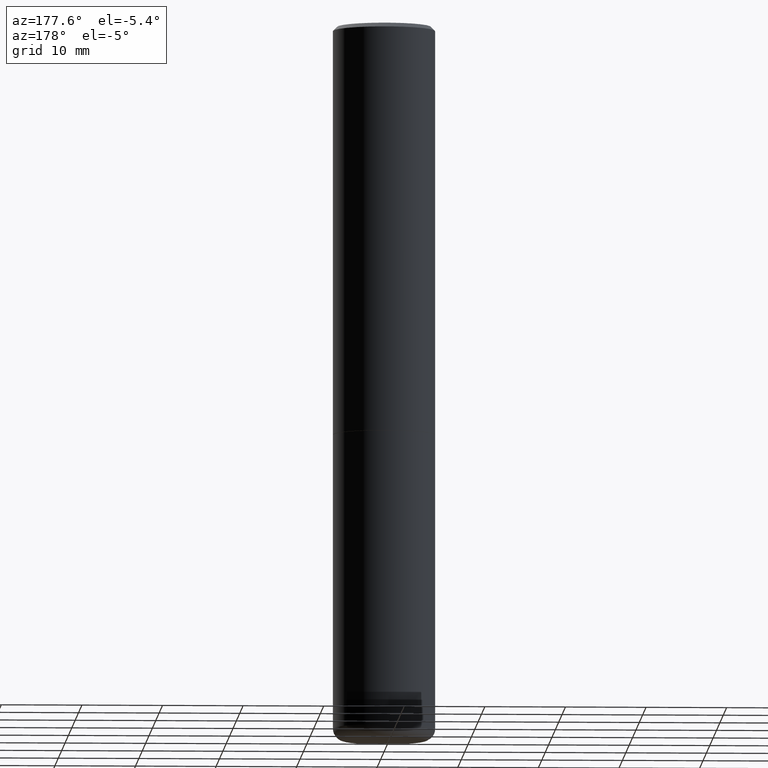
[diagram: clean part render]
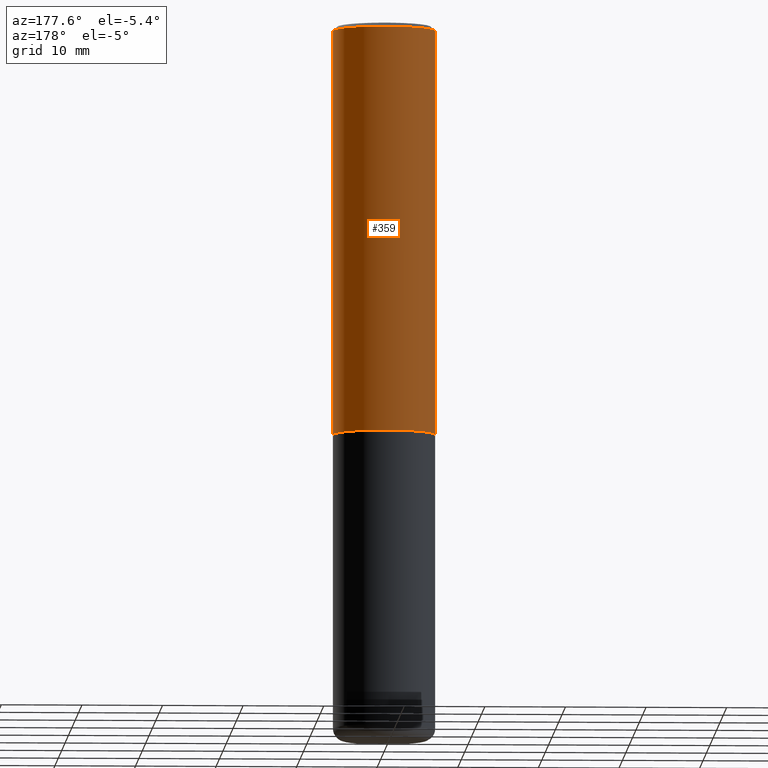
[diagram: same view with one face highlighted and labeled with its STEP entity id]
A machine part, auxiliary view. The second image highlights one B-rep face of the part: STEP entity #359.
In plain terms, the highlighted cylindrical surface (partial cylindrical patch) has radius 6.35 mm, axis along (-0, 0, 1).
Its self-contained STEP definition (entity closure, byte-faithful):
#6 = AXIS2_PLACEMENT_3D ( 'NONE', #11, #8, #188 ) ;
#8 = DIRECTION ( 'NONE',  ( -2.445468806185136597E-29, 3.491481338843145583E-15, 1.000000000000000000 ) ) ;
#11 = CARTESIAN_POINT ( 'NONE',  ( 4.890937612370287172E-31, -6.982962677686310098E-17, -0.02000000000000005593 ) ) ;
#12 = CARTESIAN_POINT ( 'NONE',  ( 0.2500000000000001110, -1.745740669421567467E-15, 1.219044193948984509E-29 ) ) ;
#16 = DIRECTION ( 'NONE',  ( -2.445468806185136597E-29, 3.491481338843145583E-15, 1.000000000000000000 ) ) ;
#38 = CARTESIAN_POINT ( 'NONE',  ( -0.2500000000000001110, 1.776356839400251254E-15, -1.229733772563727006E-29 ) ) ;
#40 = DIRECTION ( 'NONE',  ( 1.000000000000000000, -6.982962677686266711E-15, 4.876176775795935793E-29 ) ) ;
#58 = EDGE_CURVE ( 'NONE', #357, #249, #316, .T. ) ;
#59 = VERTEX_POINT ( 'NONE', #404 ) ;
#60 = ORIENTED_EDGE ( 'NONE', *, *, #212, .T. ) ;
#67 = DIRECTION ( 'NONE',  ( -2.445468806185136877E-29, 3.491481338843145188E-15, 1.000000000000000000 ) ) ;
#79 = EDGE_CURVE ( 'NONE', #59, #357, #184, .T. ) ;
#109 = FACE_OUTER_BOUND ( 'NONE', #347, .T. ) ;
#117 = CYLINDRICAL_SURFACE ( 'NONE', #132, 0.2500000000000001110 ) ;
#122 = DIRECTION ( 'NONE',  ( 1.000000000000000000, -6.982962677686266711E-15, 0.000000000000000000 ) ) ;
#132 = AXIS2_PLACEMENT_3D ( 'NONE', #372, #16, #40 ) ;
#153 = CARTESIAN_POINT ( 'NONE',  ( -0.2500000000000002776, -1.748293572161900530E-15, -1.998999999999999888 ) ) ;
#163 = VERTEX_POINT ( 'NONE', #153 ) ;
#164 = LINE ( 'NONE', #38, #360 ) ;
#184 = LINE ( 'NONE', #12, #414 ) ;
#188 = DIRECTION ( 'NONE',  ( 1.000000000000000000, -6.982962677686267499E-15, 0.000000000000000000 ) ) ;
#212 = EDGE_CURVE ( 'NONE', #59, #163, #277, .T. ) ;
#218 = CARTESIAN_POINT ( 'NONE',  ( 4.888492143564087591E-29, -6.979471196347447369E-15, -1.998999999999999888 ) ) ;
#226 = ORIENTED_EDGE ( 'NONE', *, *, #58, .F. ) ;
#249 = VERTEX_POINT ( 'NONE', #259 ) ;
#259 = CARTESIAN_POINT ( 'NONE',  ( -0.2499999999999999167, 1.675911042644703182E-15, -0.02000000000000005593 ) ) ;
#270 = DIRECTION ( 'NONE',  ( -2.445468806185136877E-29, 3.491481338843145188E-15, 1.000000000000000000 ) ) ;
#276 = EDGE_CURVE ( 'NONE', #163, #249, #164, .T. ) ;
#277 = CIRCLE ( 'NONE', #348, 0.2500000000000002776 ) ;
#312 = ORIENTED_EDGE ( 'NONE', *, *, #79, .F. ) ;
#316 = CIRCLE ( 'NONE', #6, 0.2499999999999999167 ) ;
#347 = EDGE_LOOP ( 'NONE', ( #60, #378, #226, #312 ) ) ;
#348 = AXIS2_PLACEMENT_3D ( 'NONE', #218, #379, #122 ) ;
#357 = VERTEX_POINT ( 'NONE', #400 ) ;
#359 = ADVANCED_FACE ( 'NONE', ( #109 ), #117, .T. ) ;
#360 = VECTOR ( 'NONE', #67, 39.37007874015748143 ) ;
#372 = CARTESIAN_POINT ( 'NONE',  ( 0.000000000000000000, 0.000000000000000000, 0.000000000000000000 ) ) ;
#378 = ORIENTED_EDGE ( 'NONE', *, *, #276, .T. ) ;
#379 = DIRECTION ( 'NONE',  ( -2.445468806185136597E-29, 3.491481338843145583E-15, 1.000000000000000000 ) ) ;
#400 = CARTESIAN_POINT ( 'NONE',  ( 0.2499999999999999167, -1.784954126219745400E-15, -0.02000000000000005593 ) ) ;
#404 = CARTESIAN_POINT ( 'NONE',  ( 0.2500000000000002776, -8.725211865769015625E-15, -1.998999999999999888 ) ) ;
#414 = VECTOR ( 'NONE', #270, 39.37007874015748143 ) ;